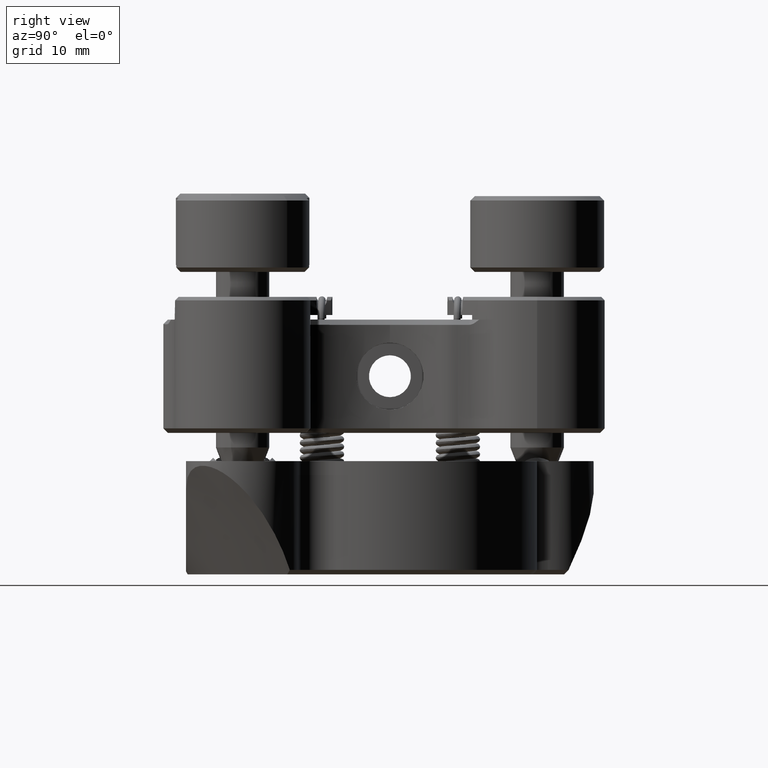
[diagram: clean part render]
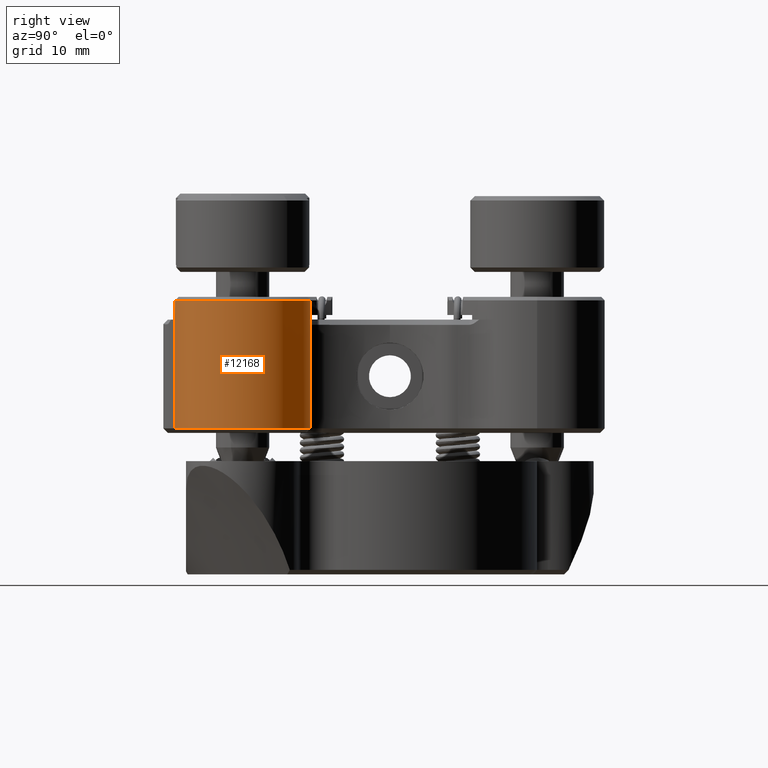
[diagram: same view with one face highlighted and labeled with its STEP entity id]
A machine part, right view. The second image highlights one B-rep face of the part: STEP entity #12168.
In plain terms, the highlighted cylindrical surface (partial cylindrical patch) has radius 7.62 mm, axis along (-0, -0, -1).
Its self-contained STEP definition (entity closure, byte-faithful):
#54 = VECTOR ( 'NONE', #7560, 1000.000000000000000 ) ;
#927 = DIRECTION ( 'NONE',  ( -0.000000000000000000, -0.000000000000000000, -1.000000000000000000 ) ) ;
#968 = CARTESIAN_POINT ( 'NONE',  ( 35.19131634220306637, 15.76245352512681919, 40.53570909685331003 ) ) ;
#992 = DIRECTION ( 'NONE',  ( -0.000000000000000000, -0.000000000000000000, 1.000000000000000000 ) ) ;
#1232 = CYLINDRICAL_SURFACE ( 'NONE', #9971, 7.620000000000022311 ) ;
#1623 = VERTEX_POINT ( 'NONE', #13404 ) ;
#1676 = VECTOR ( 'NONE', #8228, 1000.000000000000000 ) ;
#1890 = LINE ( 'NONE', #16724, #21016 ) ;
#1983 = CIRCLE ( 'NONE', #10921, 7.619999999999842011 ) ;
#2130 = ORIENTED_EDGE ( 'NONE', *, *, #7628, .F. ) ;
#2851 = FACE_OUTER_BOUND ( 'NONE', #11350, .T. ) ;
#3266 = AXIS2_PLACEMENT_3D ( 'NONE', #16932, #3933, #8999 ) ;
#3279 = CARTESIAN_POINT ( 'NONE',  ( 41.88115173361350685, 4.494097397248246750, 40.91670909685328894 ) ) ;
#3591 = EDGE_CURVE ( 'NONE', #4445, #17157, #3895, .T. ) ;
#3895 = CIRCLE ( 'NONE', #10763, 7.620000000000022311 ) ;
#3933 = DIRECTION ( 'NONE',  ( -0.000000000000000000, -0.000000000000000000, 1.000000000000000000 ) ) ;
#4163 = EDGE_CURVE ( 'NONE', #4444, #14672, #1890, .T. ) ;
#4166 = LINE ( 'NONE', #17166, #16397 ) ;
#4364 = EDGE_CURVE ( 'NONE', #20085, #7042, #18583, .T. ) ;
#4444 = VERTEX_POINT ( 'NONE', #17698 ) ;
#4445 = VERTEX_POINT ( 'NONE', #12739 ) ;
#4759 = ORIENTED_EDGE ( 'NONE', *, *, #3591, .T. ) ;
#5419 = ORIENTED_EDGE ( 'NONE', *, *, #21199, .T. ) ;
#5765 = CARTESIAN_POINT ( 'NONE',  ( 41.88115173361342869, 12.11409739724833301, 38.37670909685328979 ) ) ;
#5947 = ORIENTED_EDGE ( 'NONE', *, *, #17359, .T. ) ;
#5949 = DIRECTION ( 'NONE',  ( -1.000000000000000000, 9.106159978880849785E-16, 0.000000000000000000 ) ) ;
#6899 = VERTEX_POINT ( 'NONE', #11463 ) ;
#7042 = VERTEX_POINT ( 'NONE', #7836 ) ;
#7560 = DIRECTION ( 'NONE',  ( -0.000000000000000000, -0.000000000000000000, 1.000000000000000000 ) ) ;
#7566 = EDGE_CURVE ( 'NONE', #10542, #4444, #1983, .T. ) ;
#7628 = EDGE_CURVE ( 'NONE', #10542, #1623, #4166, .T. ) ;
#7671 = DIRECTION ( 'NONE',  ( 0.000000000000000000, 0.000000000000000000, -1.000000000000000000 ) ) ;
#7836 = CARTESIAN_POINT ( 'NONE',  ( 41.88115173361350685, 4.494097397248490111, 38.37670909685328979 ) ) ;
#8016 = DIRECTION ( 'NONE',  ( -1.000000000000000000, 0.000000000000000000, 0.000000000000000000 ) ) ;
#8228 = DIRECTION ( 'NONE',  ( -0.000000000000000000, -0.000000000000000000, -1.000000000000000000 ) ) ;
#8598 = ORIENTED_EDGE ( 'NONE', *, *, #4364, .T. ) ;
#8897 = DIRECTION ( 'NONE',  ( -1.000000000000000000, 0.000000000000000000, 0.000000000000000000 ) ) ;
#8999 = DIRECTION ( 'NONE',  ( -1.000000000000000000, 0.000000000000000000, 0.000000000000000000 ) ) ;
#9292 = EDGE_CURVE ( 'NONE', #7042, #4445, #18012, .T. ) ;
#9348 = AXIS2_PLACEMENT_3D ( 'NONE', #15497, #7671, #18318 ) ;
#9971 = AXIS2_PLACEMENT_3D ( 'NONE', #12835, #14326, #20880 ) ;
#10542 = VERTEX_POINT ( 'NONE', #17773 ) ;
#10763 = AXIS2_PLACEMENT_3D ( 'NONE', #17561, #992, #5949 ) ;
#10921 = AXIS2_PLACEMENT_3D ( 'NONE', #5765, #17276, #8897 ) ;
#11350 = EDGE_LOOP ( 'NONE', ( #15036, #5947, #12526, #8598, #15579, #4759, #5419, #2130, #15034 ) ) ;
#11463 = CARTESIAN_POINT ( 'NONE',  ( 35.19131634220313742, 8.465741269369379651, 40.53570909685331003 ) ) ;
#11716 = AXIS2_PLACEMENT_3D ( 'NONE', #16277, #19700, #8016 ) ;
#11875 = DIRECTION ( 'NONE',  ( -0.000000000000000000, -0.000000000000000000, 1.000000000000000000 ) ) ;
#12168 = ADVANCED_FACE ( 'NONE', ( #2851 ), #1232, .T. ) ;
#12526 = ORIENTED_EDGE ( 'NONE', *, *, #17259, .F. ) ;
#12739 = CARTESIAN_POINT ( 'NONE',  ( 41.88115173361350685, 4.494097397248246750, 26.18470909685332870 ) ) ;
#12835 = CARTESIAN_POINT ( 'NONE',  ( 41.88115173361342158, 12.11409739724833301, 40.91670909685328894 ) ) ;
#13404 = CARTESIAN_POINT ( 'NONE',  ( 37.07853345739273010, 18.03011444361588289, 26.18470909685332870 ) ) ;
#13903 = CIRCLE ( 'NONE', #3266, 7.620000000000022311 ) ;
#14203 = CARTESIAN_POINT ( 'NONE',  ( 35.19131634220313742, 8.465741269369379651, 38.37670909685328979 ) ) ;
#14209 = CARTESIAN_POINT ( 'NONE',  ( 35.19131634220313742, 8.465741269369379651, 38.37670909685328979 ) ) ;
#14326 = DIRECTION ( 'NONE',  ( -0.000000000000000000, -0.000000000000000000, -1.000000000000000000 ) ) ;
#14672 = VERTEX_POINT ( 'NONE', #968 ) ;
#15034 = ORIENTED_EDGE ( 'NONE', *, *, #7566, .T. ) ;
#15036 = ORIENTED_EDGE ( 'NONE', *, *, #4163, .T. ) ;
#15497 = CARTESIAN_POINT ( 'NONE',  ( 41.88115173361342158, 12.11409739724833301, 40.53570909685331003 ) ) ;
#15579 = ORIENTED_EDGE ( 'NONE', *, *, #9292, .T. ) ;
#16277 = CARTESIAN_POINT ( 'NONE',  ( 41.88115173361342869, 12.11409739724833301, 38.37670909685328979 ) ) ;
#16383 = CARTESIAN_POINT ( 'NONE',  ( 49.50115173361344034, 12.11409739724833301, 26.18470909685332515 ) ) ;
#16397 = VECTOR ( 'NONE', #927, 1000.000000000000000 ) ;
#16724 = CARTESIAN_POINT ( 'NONE',  ( 35.19131634220306637, 15.76245352512681919, 38.37670909685328979 ) ) ;
#16932 = CARTESIAN_POINT ( 'NONE',  ( 41.88115173361342158, 12.11409739724833301, 26.18470909685332515 ) ) ;
#17157 = VERTEX_POINT ( 'NONE', #16383 ) ;
#17166 = CARTESIAN_POINT ( 'NONE',  ( 37.07853345739273010, 18.03011444361588289, 40.91670909685328894 ) ) ;
#17259 = EDGE_CURVE ( 'NONE', #20085, #6899, #17327, .T. ) ;
#17276 = DIRECTION ( 'NONE',  ( 0.000000000000000000, 0.000000000000000000, 1.000000000000000000 ) ) ;
#17327 = LINE ( 'NONE', #14203, #54 ) ;
#17359 = EDGE_CURVE ( 'NONE', #14672, #6899, #19291, .T. ) ;
#17561 = CARTESIAN_POINT ( 'NONE',  ( 41.88115173361342158, 12.11409739724833301, 26.18470909685332515 ) ) ;
#17698 = CARTESIAN_POINT ( 'NONE',  ( 35.19131634220291716, 15.76245352512689557, 38.37670909685328979 ) ) ;
#17773 = CARTESIAN_POINT ( 'NONE',  ( 37.07853345739285800, 18.03011444361573723, 38.37670909685328979 ) ) ;
#18012 = LINE ( 'NONE', #3279, #1676 ) ;
#18318 = DIRECTION ( 'NONE',  ( -1.000000000000000000, 0.000000000000000000, 0.000000000000000000 ) ) ;
#18583 = CIRCLE ( 'NONE', #11716, 7.619999999999842011 ) ;
#19291 = CIRCLE ( 'NONE', #9348, 7.620000000000022311 ) ;
#19700 = DIRECTION ( 'NONE',  ( 0.000000000000000000, 0.000000000000000000, 1.000000000000000000 ) ) ;
#20085 = VERTEX_POINT ( 'NONE', #14209 ) ;
#20880 = DIRECTION ( 'NONE',  ( -1.000000000000000000, 0.000000000000000000, 0.000000000000000000 ) ) ;
#21016 = VECTOR ( 'NONE', #11875, 1000.000000000000000 ) ;
#21199 = EDGE_CURVE ( 'NONE', #17157, #1623, #13903, .T. ) ;